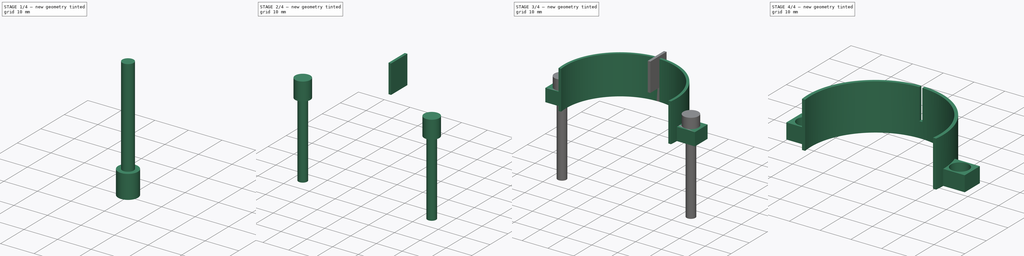
[diagram: build sequence overview — one tinted view per stage of 4, left to right]
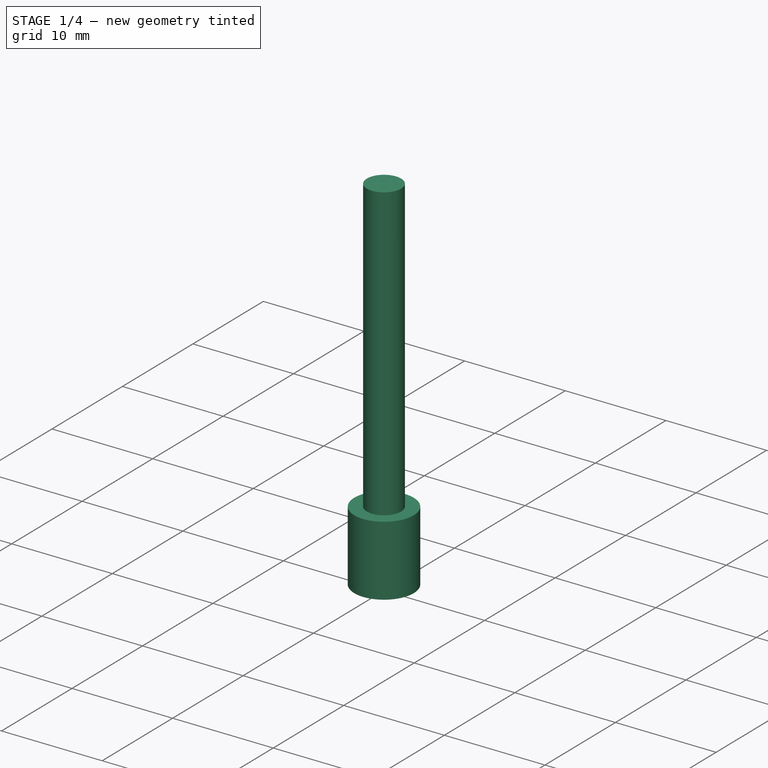
[diagram: stage 1 of 4 — iso view after this stage's code; geometry added in this stage tinted green]
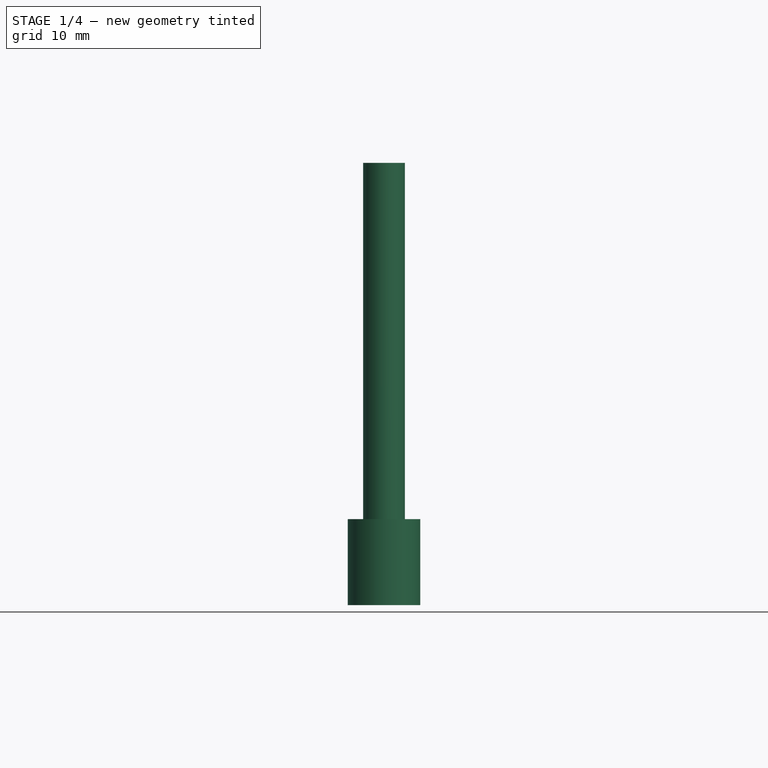
[diagram: stage 1 of 4 — front view after this stage's code; geometry added in this stage tinted green]
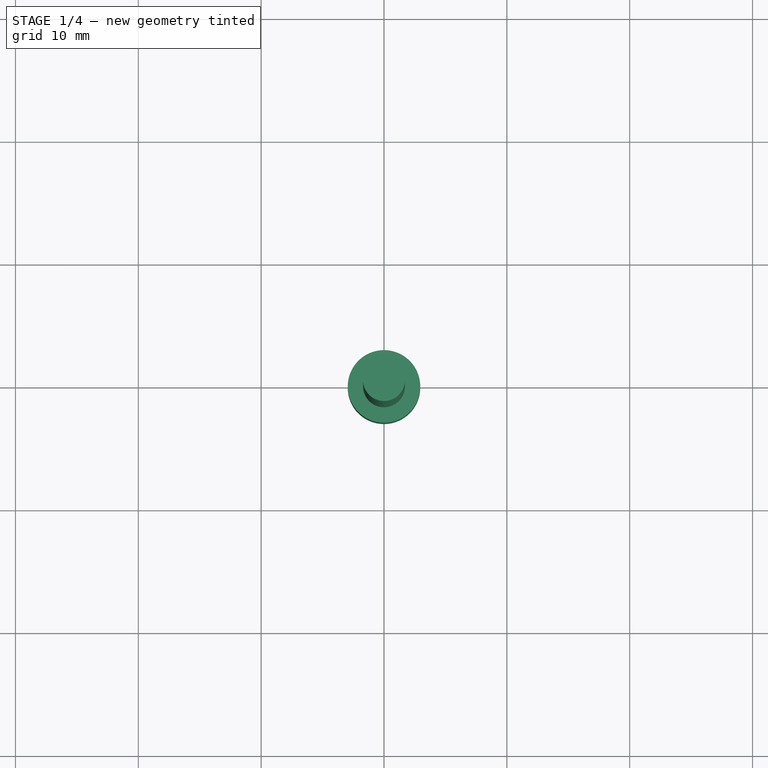
[diagram: stage 1 of 4 — top view after this stage's code; geometry added in this stage tinted green]
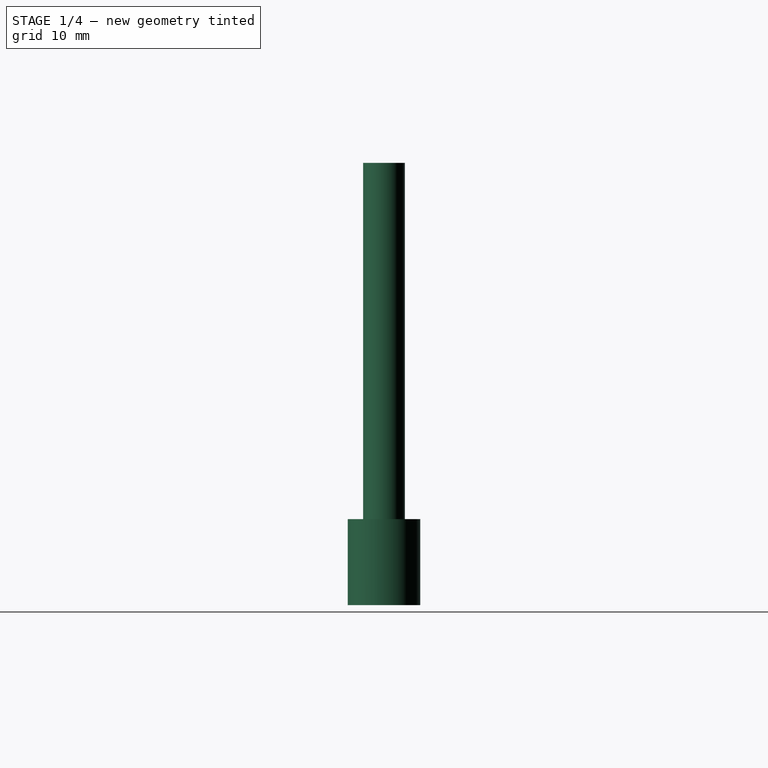
[diagram: stage 1 of 4 — right view after this stage's code; geometry added in this stage tinted green]
FCSTD DOCUMENT  (FreeCAD 0.16R6458 (Git))
Label: Art23Optodisk
License: CreativeCommons Attribution-ShareAlike
LicenseURL: http://creativecommons.org/licenses/by-sa/4.0/
objects: Part::MultiFuse×3, Part::Cylinder×2, Sketcher::SketchObject×2, PartDesign::Pad×2, Part::FeaturePython×2, Part::Cut×2, Part::Box×1, App::DocumentObjectGroup×1
note: 16 computed .brp shape members not serialized (recipe doc carries the construction recipe); baked Part::Feature solids carry a one-line shape summary decoded from their .brp

FEATURE [Part::Cylinder] Cylinder  label="M3BoltHead"
  Angle = 360
  Height = 7
  Radius = 2.95
FEATURE [Part::Cylinder] Cylinder001  label="M3BoltBody"
  Angle = 360
  Height = 30
  Placement = pos=(0,0,6) rot=(0,0,1;0rad)
  Radius = 1.7
FEATURE [Part::MultiFuse] Fusion  label="M3Bolt"
  Shapes = -> [Cylinder001,Cylinder]
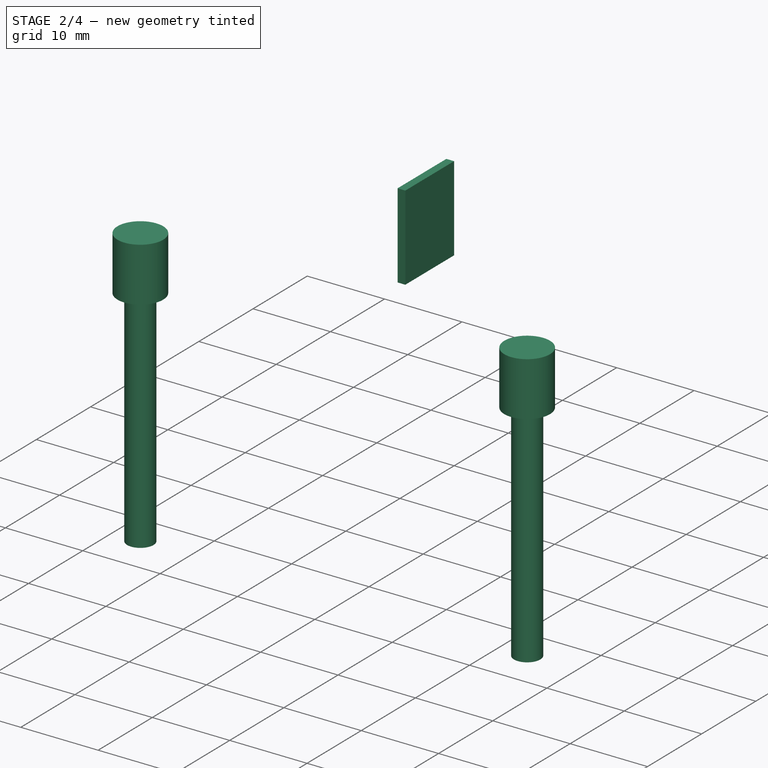
[diagram: stage 2 of 4 — iso view after this stage's code; geometry added in this stage tinted green]
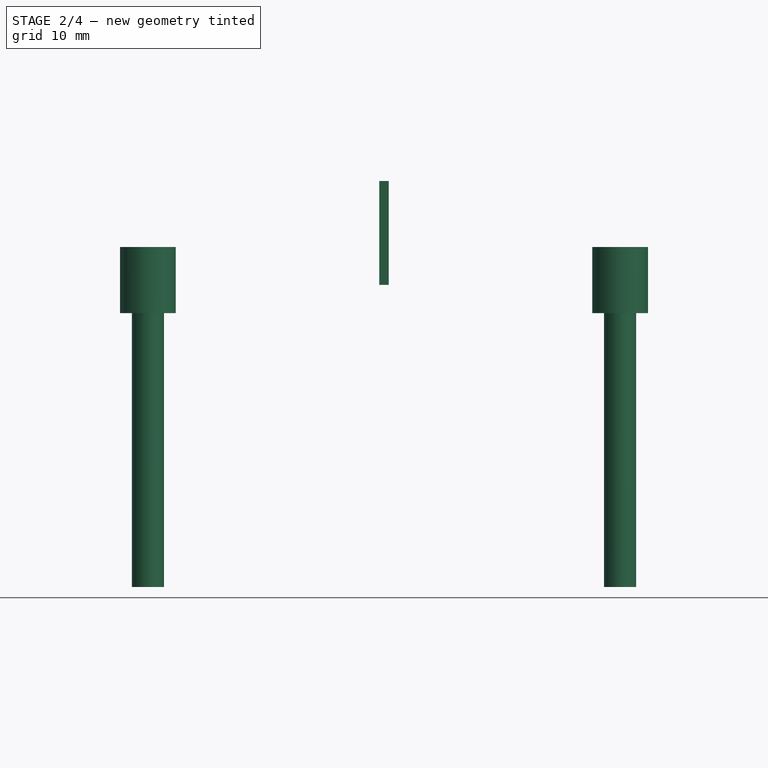
[diagram: stage 2 of 4 — front view after this stage's code; geometry added in this stage tinted green]
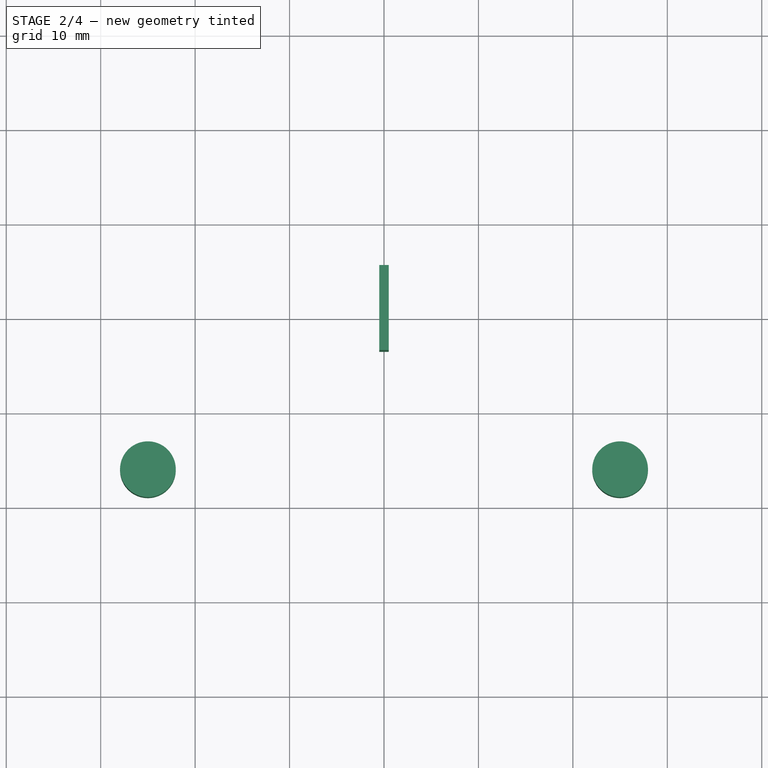
[diagram: stage 2 of 4 — top view after this stage's code; geometry added in this stage tinted green]
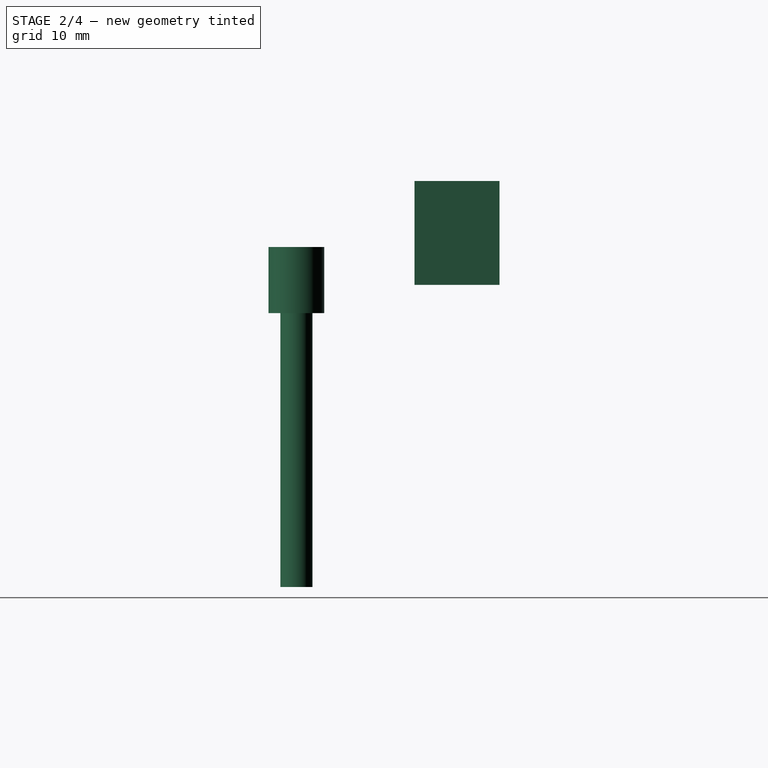
[diagram: stage 2 of 4 — right view after this stage's code; geometry added in this stage tinted green]
FEATURE [Part::FeaturePython] Clone343  label="Clone of M3Bolt114"  # Draft clone (typed FeaturePython)
  Objects = -> [Fusion]
  Placement = pos=(25,3.5,9) rot=(1,0,0;3.14159rad)
  Scale = (1,1,1)
FEATURE [Part::FeaturePython] Clone344  label="Clone of M3Bolt115"  # Draft clone (typed FeaturePython)
  Objects = -> [Fusion]
  Placement = pos=(-25,3.5,9) rot=(1,0,0;3.14159rad)
  Scale = (1,1,1)
FEATURE [Part::Box] Box259  label="Cube022"
  Height = 11
  Length = 1
  Placement = pos=(-0.5,16,5) rot=(0,0,1;0rad)
  Width = 9
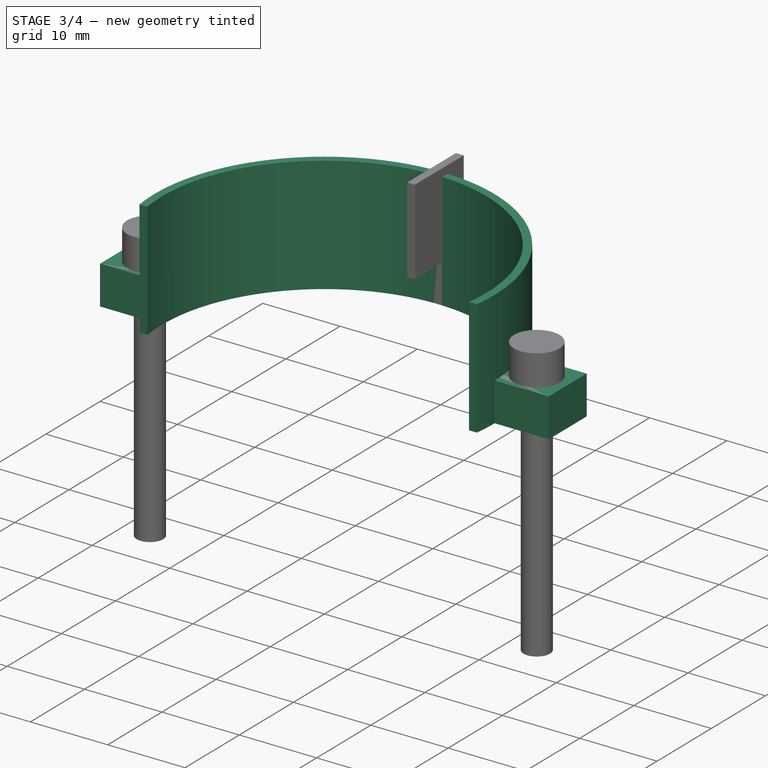
[diagram: stage 3 of 4 — iso view after this stage's code; geometry added in this stage tinted green]
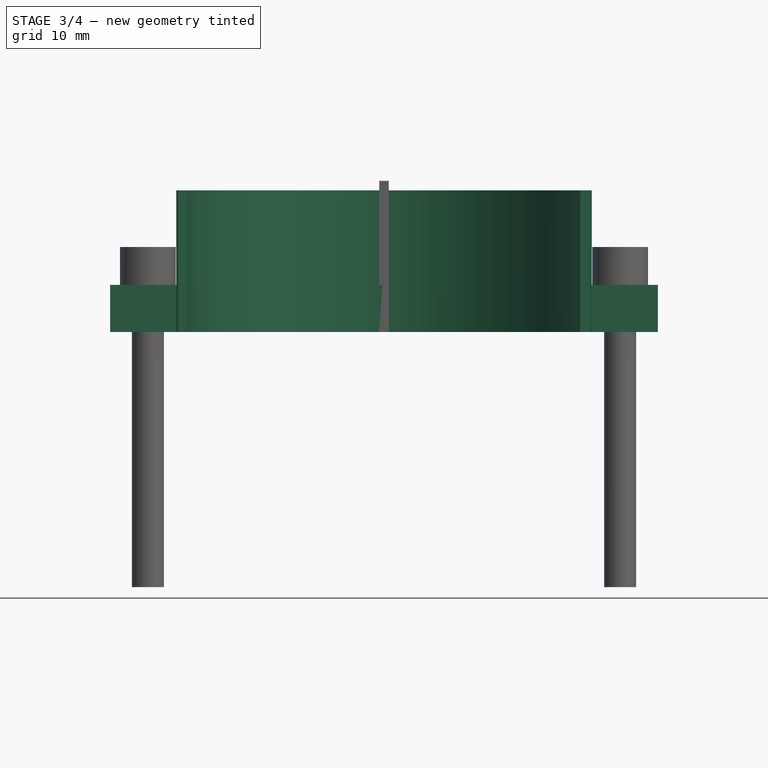
[diagram: stage 3 of 4 — front view after this stage's code; geometry added in this stage tinted green]
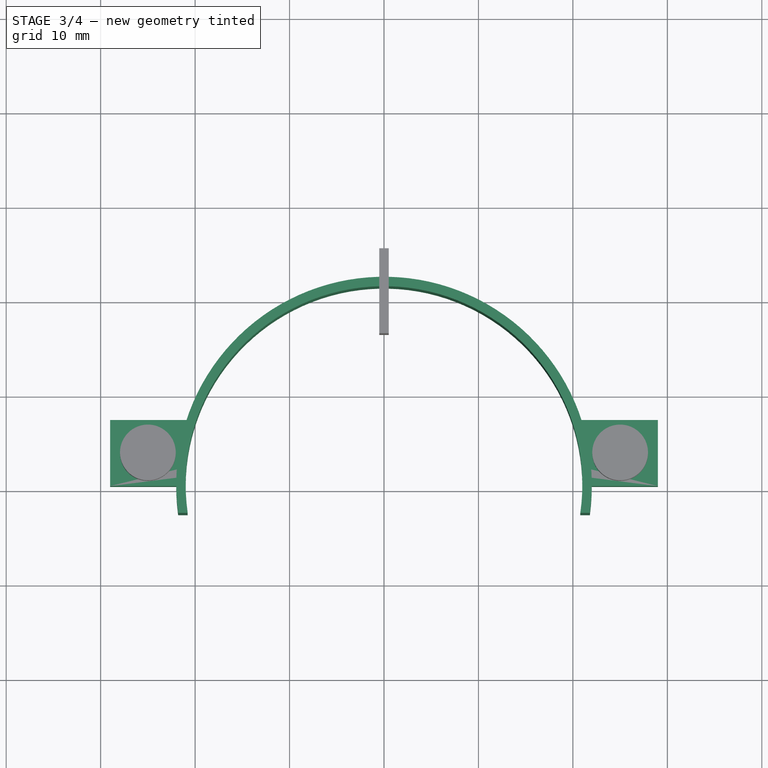
[diagram: stage 3 of 4 — top view after this stage's code; geometry added in this stage tinted green]
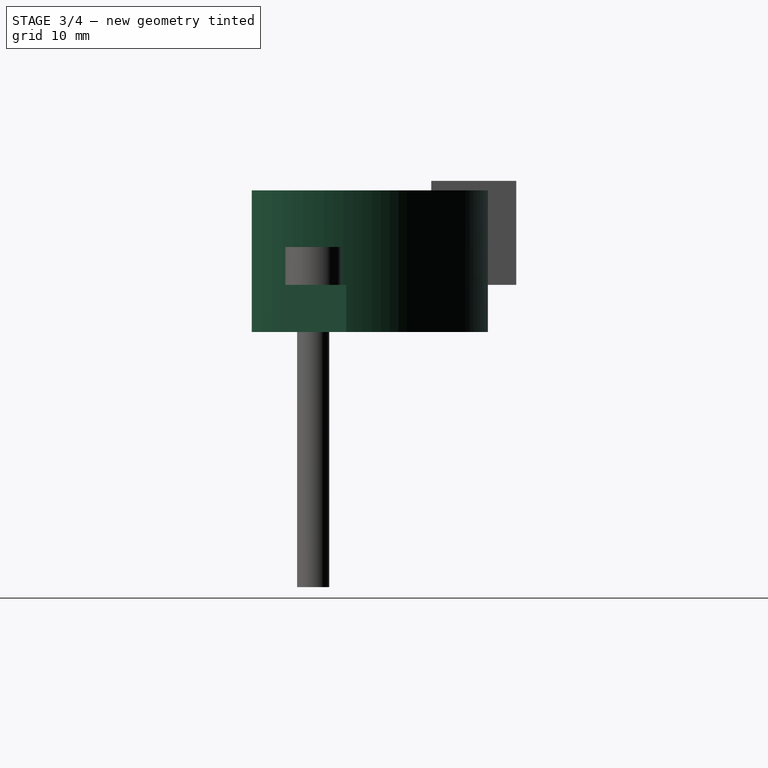
[diagram: stage 3 of 4 — right view after this stage's code; geometry added in this stage tinted green]
FEATURE [Sketcher::SketchObject] Sketch068
  sketch-geometry (5):
    g0: ArcOfCircle CenterX=0 CenterY=0 CenterZ=0 NormalX=0 NormalY=0 NormalZ=1 Radius=22 StartAngle=6.1464 EndAngle=9.56157
    g1: ArcOfCircle CenterX=0 CenterY=0 CenterZ=0 NormalX=0 NormalY=0 NormalZ=1 Radius=21 StartAngle=6.13984 EndAngle=9.56813
    g2: LineSegment StartX=-21.7945 StartY=-3 StartZ=0 EndX=-20.7846 EndY=-3 EndZ=0
    g3: LineSegment StartX=20.7846 StartY=-3 StartZ=0 EndX=21.7945 EndY=-3 EndZ=0
    g4: LineSegment [constr] StartX=-20.7846 StartY=-3 StartZ=0 EndX=20.7846 EndY=-3 EndZ=0
  constraints (14):
    c: Coincident(g0,g-1)
    c: Coincident(g1,g-1)
    c: Coincident(g2,g0)
    c: Coincident(g2,g1)
    c: Coincident(g3,g1)
    c: Coincident(g3,g0)
    c: Radius(g1) = 21
    c: Radius(g0) = 22
    c: Horizontal(g2)
    c: Horizontal(g3)
    c: Coincident(g4,g1)
    c: Coincident(g4,g1)
    c: Horizontal(g4)
    c: DistanceY(g-1,g1) = -3
FEATURE [PartDesign::Pad] Pad043
  Length = 15
  Length2 = 100
  Sketch = -> Sketch068
  Type = 0
FEATURE [Sketcher::SketchObject] Sketch069
  sketch-geometry (8):
    g0: ArcOfCircle CenterX=0 CenterY=0 CenterZ=0 NormalX=0 NormalY=0 NormalZ=1 Radius=21 StartAngle=0 EndAngle=0.339837
    g1: LineSegment StartX=19.799 StartY=7 StartZ=0 EndX=29 EndY=7 EndZ=0
    g2: LineSegment StartX=29 StartY=7 StartZ=0 EndX=29 EndY=0 EndZ=0
    g3: LineSegment StartX=29 StartY=0 StartZ=0 EndX=21 EndY=0 EndZ=0
    g4: ArcOfCircle CenterX=0 CenterY=0 CenterZ=0 NormalX=0 NormalY=0 NormalZ=1 Radius=21 StartAngle=2.80176 EndAngle=3.14159
    g5: LineSegment StartX=-19.799 StartY=7 StartZ=0 EndX=-29 EndY=7 EndZ=0
    g6: LineSegment StartX=-29 StartY=7 StartZ=0 EndX=-29 EndY=0 EndZ=0
    g7: LineSegment StartX=-29 StartY=0 StartZ=0 EndX=-21 EndY=0 EndZ=0
  constraints (24):
    c: Coincident(g0,g-1)
    c: PointOnObject(g0,g-1)
    c: Coincident(g1,g2)
    c: PointOnObject(g2,g-1)
    c: Vertical(g2)
    c: Coincident(g2,g3)
    c: Coincident(g3,g0)
    c: Radius(g0) = 21
    c: DistanceX(g3) = -8
    c: DistanceY(g2) = -7
    c: Coincident(g0,g1)
    c: Horizontal(g1)
    c: Coincident(g4,g-1)
    c: PointOnObject(g4,g-1)
    c: Coincident(g4,g5)
    c: Coincident(g5,g6)
    c: PointOnObject(g6,g-1)
    c: Vertical(g6)
    c: Coincident(g6,g7)
    c: Coincident(g7,g4)
    c: Horizontal(g5)
    c: Equal(g6,g2)
    c: Equal(g7,g3)
    c: Equal(g0,g4)
FEATURE [PartDesign::Pad] Pad044
  Length = 5
  Length2 = 100
  Sketch = -> Sketch069
  Type = 0
FEATURE [Part::MultiFuse] Fusion127
  Shapes = -> [Clone344,Clone343]
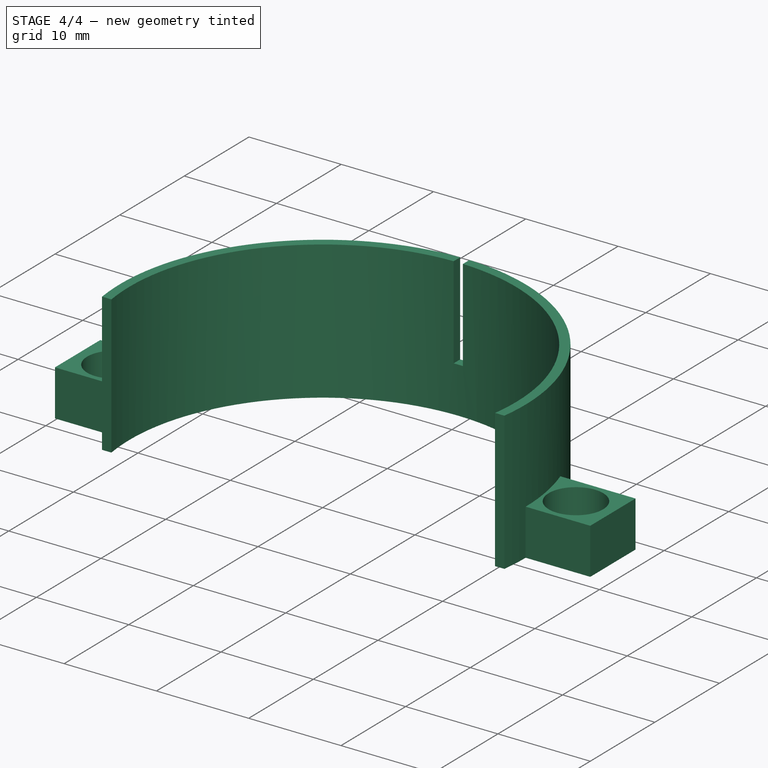
[diagram: stage 4 of 4 — iso view after this stage's code; geometry added in this stage tinted green]
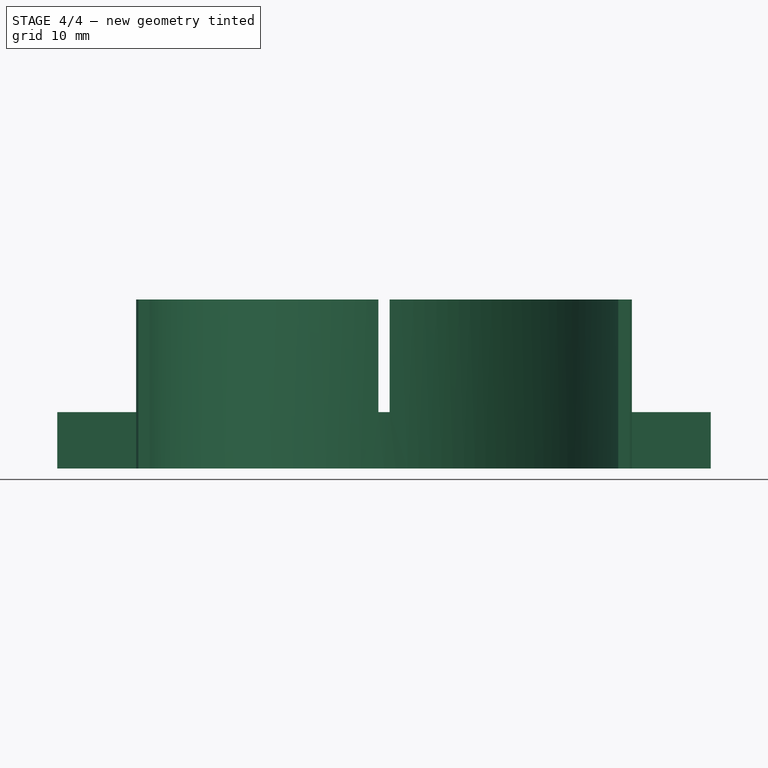
[diagram: stage 4 of 4 — front view after this stage's code; geometry added in this stage tinted green]
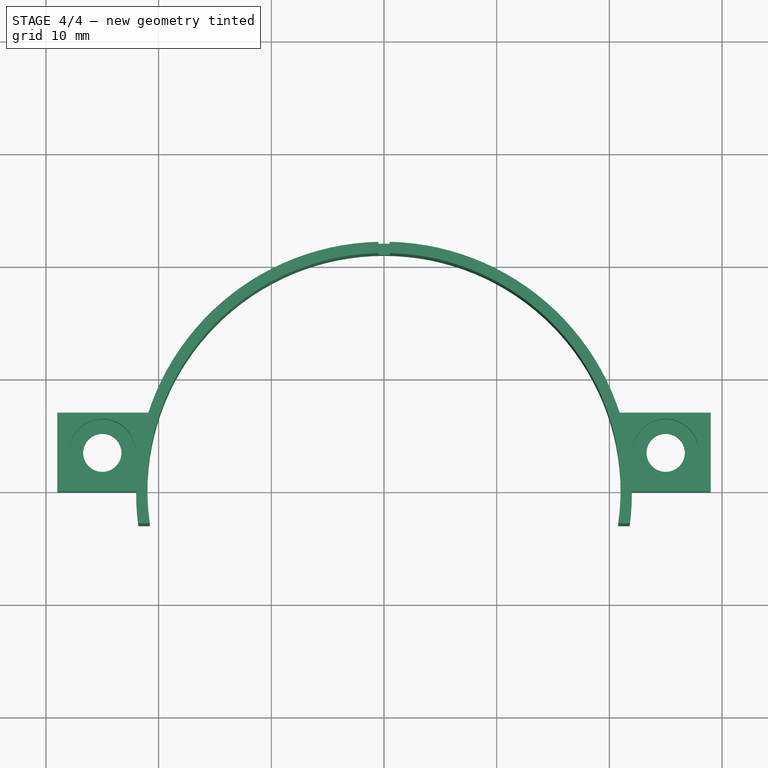
[diagram: stage 4 of 4 — top view after this stage's code; geometry added in this stage tinted green]
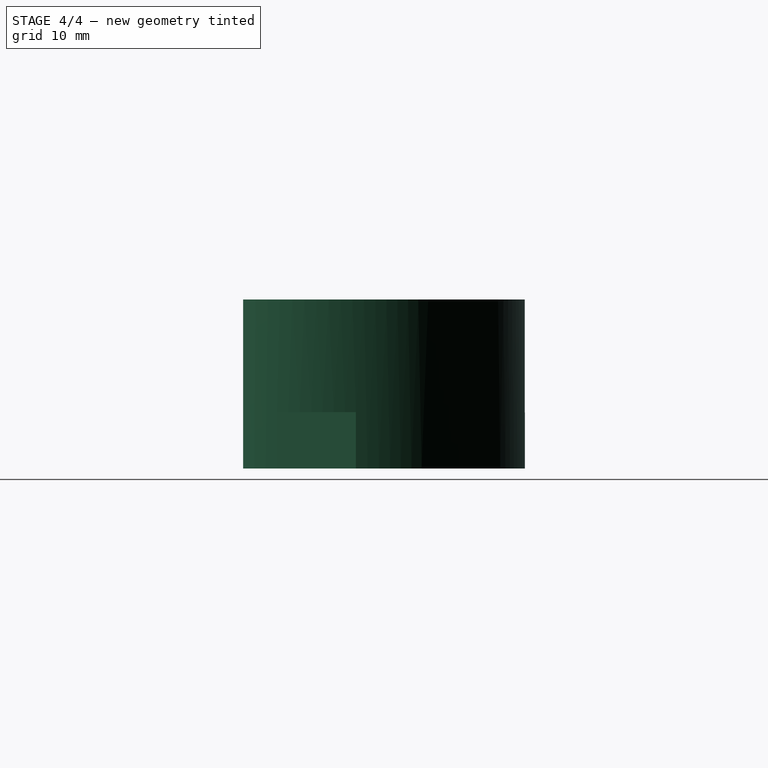
[diagram: stage 4 of 4 — right view after this stage's code; geometry added in this stage tinted green]
FEATURE [Part::MultiFuse] Fusion126
  Shapes = -> [Pad044,Pad043]
FEATURE [Part::Cut] Cut107  label="Cut164"
  Base = -> Fusion126
  Tool = -> Fusion127
FEATURE [Part::Cut] Cut108  label="Art23OptodiskMaster"
  Base = -> Cut107
  Tool = -> Box259
FEATURE [App::DocumentObjectGroup] Group  label="Master"
  Group = -> [Fusion]
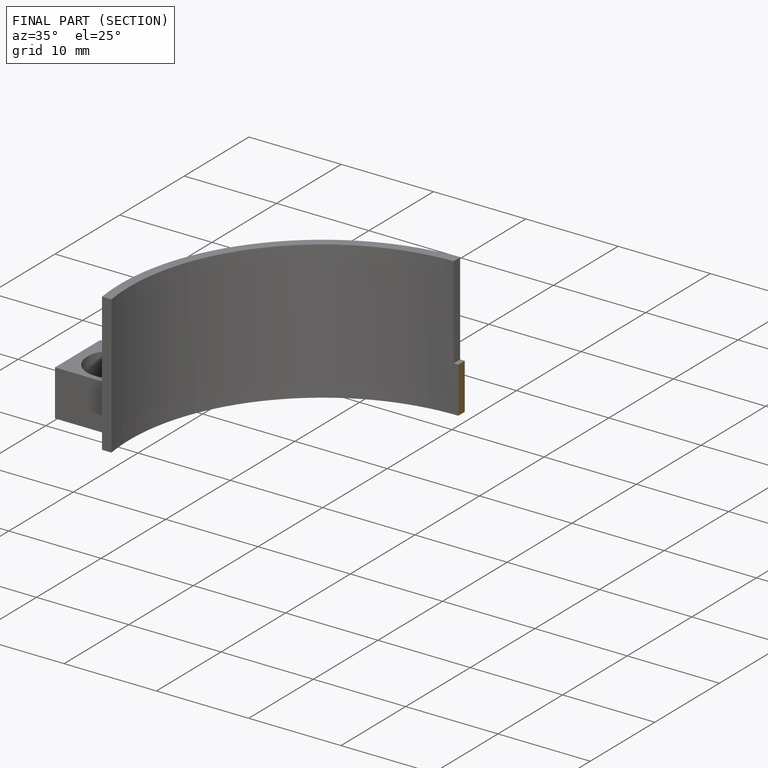
[diagram: finished part — half-section view (interior)]
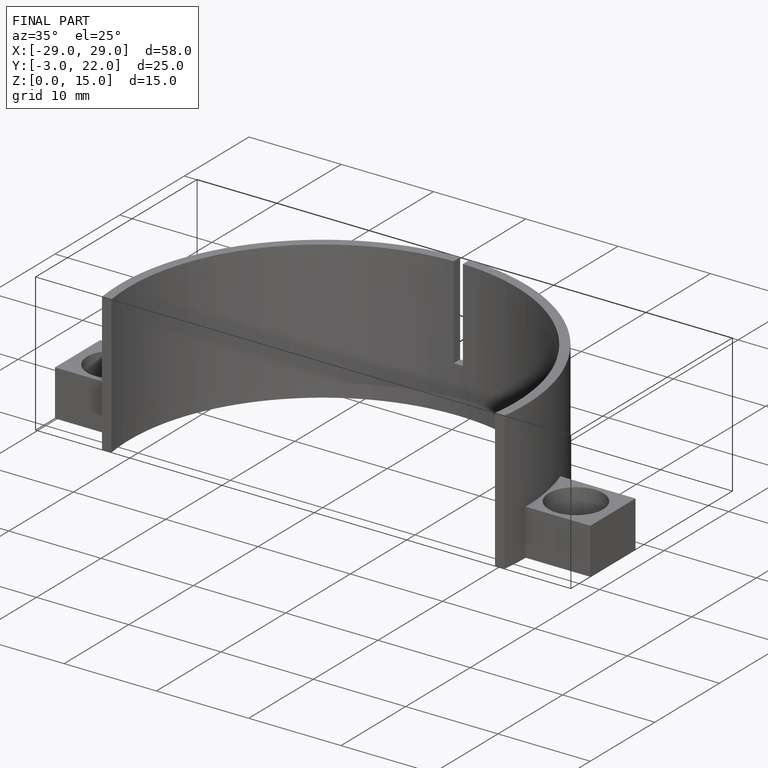
[diagram: finished part — iso view with bounding-box wireframe]
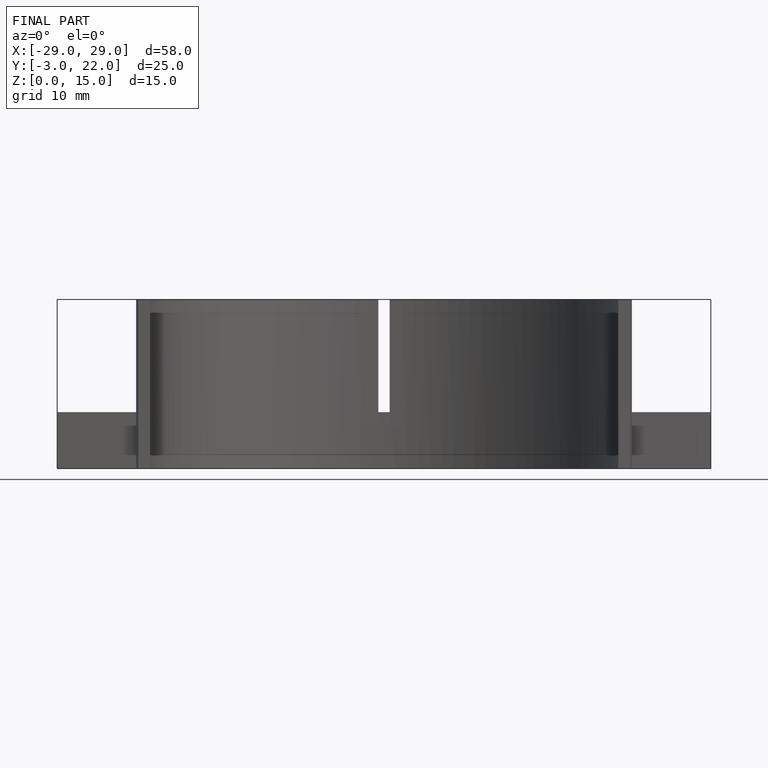
[diagram: finished part — front view with bounding-box wireframe]
